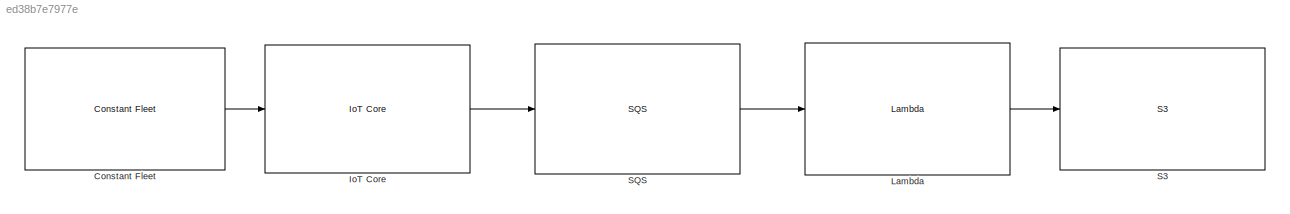
MODEL slx_ed38b7e7977e
KIND model
CONFIG AbsTol = auto
CONFIG EnableMultiTasking = off
CONFIG FixedStep = auto
CONFIG MaxStep = auto
CONFIG MinStep = auto
CONFIG RelTol = 1e-3
CONFIG SampleTimeConstraint = Unconstrained
CONFIG SolverName = VariableStepAuto
CONFIG StartTime = 0.0
CONFIG StopTime = 1800
BLOCK [Reference] Constant Fleet  REF=VACLib/Vehicle Components/Constant Fleet
  SourceBlock = VACLib/Vehicle Components/Constant Fleet
  SourceProductName = Volvo Architechture Components
BLOCK [Reference] IoT Core  REF=VACLib/AWS Components/IoT Core
  SourceBlock = VACLib/AWS Components/IoT Core
  SourceProductName = Volvo Architechture Components
BLOCK [Reference] Lambda  REF=VACLib/AWS Components/Lambda
  SourceBlock = VACLib/AWS Components/Lambda
  SourceProductName = Volvo Architechture Components
BLOCK [Reference] S3  REF=VACLib/AWS Components/S3
  SourceBlock = VACLib/AWS Components/S3
  SourceProductName = Volvo Architechture Components
BLOCK [Reference] SQS  REF=VACLib/AWS Components/SQS
  SourceBlock = VACLib/AWS Components/SQS
  SourceProductName = Volvo Architechture Components
LINE Constant Fleet:1 -> IoT Core:1
LINE IoT Core:1 -> SQS:1
LINE Lambda:1 -> S3:1
LINE SQS:1 -> Lambda:1
